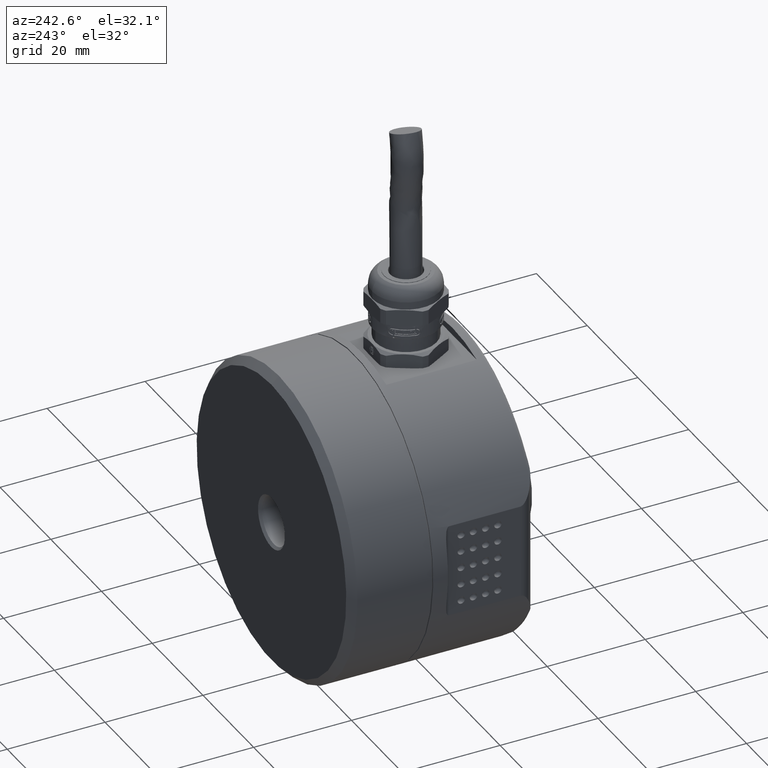
[diagram: clean part render]
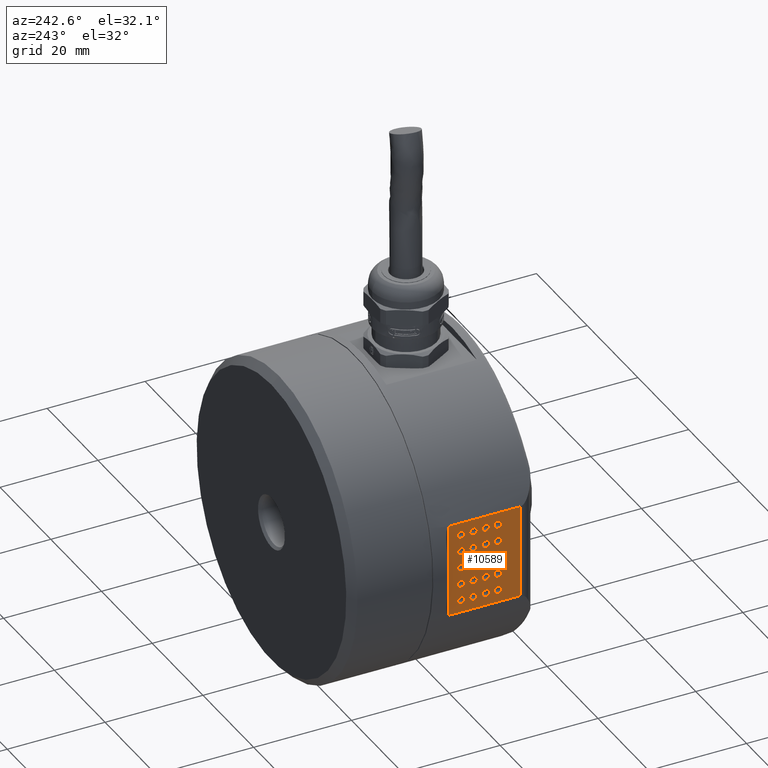
[diagram: same view with one face highlighted and labeled with its STEP entity id]
A machine part, auxiliary view. The second image highlights one B-rep face of the part: STEP entity #10589.
In plain terms, the highlighted planar face has unit normal (1, 0, 0).
Its self-contained STEP definition (entity closure, byte-faithful):
#1 = DIRECTION ( 'NONE',  ( -1.000000000000000000, 0.000000000000000000, 1.224646799147353207E-16 ) ) ;
#23 = CARTESIAN_POINT ( 'NONE',  ( -29.50000000000000355, 23.25000000000000000, -3.499999895691868979 ) ) ;
#29 = EDGE_CURVE ( 'NONE', #3752, #8748, #9742, .T. ) ;
#67 = CIRCLE ( 'NONE', #12413, 0.7500000000000006661 ) ;
#71 = EDGE_CURVE ( 'NONE', #3728, #7566, #6668, .T. ) ;
#180 = AXIS2_PLACEMENT_3D ( 'NONE', #4511, #16508, #13855 ) ;
#232 = DIRECTION ( 'NONE',  ( 0.000000000000000000, -1.000000000000000000, 0.000000000000000000 ) ) ;
#344 = CIRCLE ( 'NONE', #10169, 0.7500000000000006661 ) ;
#350 = DIRECTION ( 'NONE',  ( -0.000000000000000000, 0.000000000000000000, -1.000000000000000000 ) ) ;
#415 = CIRCLE ( 'NONE', #5239, 0.7500000000000006661 ) ;
#472 = FACE_OUTER_BOUND ( 'NONE', #15123, .T. ) ;
#515 = VECTOR ( 'NONE', #17164, 1000.000000000000000 ) ;
#544 = CARTESIAN_POINT ( 'NONE',  ( -29.50000000000000355, 19.25000000000000000, -6.999999895691870755 ) ) ;
#617 = AXIS2_PLACEMENT_3D ( 'NONE', #2905, #14808, #8269 ) ;
#650 = DIRECTION ( 'NONE',  ( 0.000000000000000000, -1.000000000000000000, -8.881784274204767616E-16 ) ) ;
#677 = CIRCLE ( 'NONE', #14459, 0.7500000000000006661 ) ;
#703 = EDGE_CURVE ( 'NONE', #9369, #14325, #344, .T. ) ;
#790 = DIRECTION ( 'NONE',  ( 0.000000000000000000, -1.000000000000000000, 0.000000000000000000 ) ) ;
#821 = CARTESIAN_POINT ( 'NONE',  ( -29.50000000000000355, 19.25000000000000000, 7.000000104308131021 ) ) ;
#823 = CIRCLE ( 'NONE', #1666, 0.7500000000000006661 ) ;
#835 = DIRECTION ( 'NONE',  ( -1.000000000000000000, -0.000000000000000000, -0.000000000000000000 ) ) ;
#872 = CARTESIAN_POINT ( 'NONE',  ( -29.50000000000000355, 22.50000000000000000, 3.500000104308130133 ) ) ;
#922 = CARTESIAN_POINT ( 'NONE',  ( -29.50000000000000355, 23.25000000000000000, -6.999999895691870755 ) ) ;
#979 = DIRECTION ( 'NONE',  ( -1.000000000000000000, 0.000000000000000000, 1.224646799147353207E-16 ) ) ;
#1027 = EDGE_CURVE ( 'NONE', #14086, #14027, #13568, .T. ) ;
#1029 = VERTEX_POINT ( 'NONE', #5064 ) ;
#1116 = CIRCLE ( 'NONE', #1951, 0.7500000000000006661 ) ;
#1160 = CARTESIAN_POINT ( 'NONE',  ( -29.49999999999999645, -8.235433105048279856, -9.526279441628842548 ) ) ;
#1217 = FACE_BOUND ( 'NONE', #1915, .T. ) ;
#1240 = DIRECTION ( 'NONE',  ( 0.000000000000000000, -1.000000000000000000, 0.000000000000000000 ) ) ;
#1250 = CARTESIAN_POINT ( 'NONE',  ( -29.50000000000000000, 25.00000000000000000, 9.526279441628851430 ) ) ;
#1336 = CARTESIAN_POINT ( 'NONE',  ( -29.50000000000000355, 22.50000000000000000, -6.999999895691869867 ) ) ;
#1371 = VERTEX_POINT ( 'NONE', #9058 ) ;
#1400 = EDGE_CURVE ( 'NONE', #8001, #4062, #13277, .T. ) ;
#1509 = LINE ( 'NONE', #1160, #6720 ) ;
#1547 = CARTESIAN_POINT ( 'NONE',  ( -29.50000000000000355, 22.50000000000000000, -3.499999895691869867 ) ) ;
#1614 = EDGE_CURVE ( 'NONE', #7566, #3728, #12316, .T. ) ;
#1625 = CARTESIAN_POINT ( 'NONE',  ( -29.50000000000000355, 14.24999999999999822, -6.999999895691870755 ) ) ;
#1633 = CARTESIAN_POINT ( 'NONE',  ( -29.50000000000000355, 20.00000000000000000, 3.500000104308130133 ) ) ;
#1666 = AXIS2_PLACEMENT_3D ( 'NONE', #5521, #6725, #14669 ) ;
#1722 = AXIS2_PLACEMENT_3D ( 'NONE', #1633, #9455, #13528 ) ;
#1745 = CIRCLE ( 'NONE', #13571, 0.7500000000000006661 ) ;
#1791 = AXIS2_PLACEMENT_3D ( 'NONE', #5233, #15989, #3912 ) ;
#1812 = EDGE_CURVE ( 'NONE', #6926, #4158, #3461, .T. ) ;
#1839 = EDGE_LOOP ( 'NONE', ( #2301, #15767 ) ) ;
#1846 = DIRECTION ( 'NONE',  ( -1.000000000000000000, 0.000000000000000000, 1.224646799147353207E-16 ) ) ;
#1876 = DIRECTION ( 'NONE',  ( 0.000000000000000000, -1.000000000000000000, 0.000000000000000000 ) ) ;
#1915 = EDGE_LOOP ( 'NONE', ( #14796, #3653 ) ) ;
#1925 = AXIS2_PLACEMENT_3D ( 'NONE', #2179, #7529, #12911 ) ;
#1951 = AXIS2_PLACEMENT_3D ( 'NONE', #2544, #1, #2365 ) ;
#2054 = CARTESIAN_POINT ( 'NONE',  ( -29.50000000000000355, 15.00000000000000000, -3.499999895691869867 ) ) ;
#2066 = AXIS2_PLACEMENT_3D ( 'NONE', #2631, #2713, #9040 ) ;
#2075 = EDGE_CURVE ( 'NONE', #10793, #11340, #3373, .T. ) ;
#2105 = DIRECTION ( 'NONE',  ( -1.000000000000000000, 0.000000000000000000, 1.224646799147353207E-16 ) ) ;
#2179 = CARTESIAN_POINT ( 'NONE',  ( -29.50000000000000355, 17.50000000000000000, 3.500000104308130133 ) ) ;
#2272 = AXIS2_PLACEMENT_3D ( 'NONE', #5067, #15823, #3734 ) ;
#2278 = CIRCLE ( 'NONE', #16618, 0.7500000000000006661 ) ;
#2301 = ORIENTED_EDGE ( 'NONE', *, *, #13540, .F. ) ;
#2365 = DIRECTION ( 'NONE',  ( 0.000000000000000000, -1.000000000000000000, 0.000000000000000000 ) ) ;
#2397 = VERTEX_POINT ( 'NONE', #16515 ) ;
#2510 = FACE_BOUND ( 'NONE', #14647, .T. ) ;
#2544 = CARTESIAN_POINT ( 'NONE',  ( -29.50000000000000355, 17.50000000000000000, -6.999999895691869867 ) ) ;
#2565 = DIRECTION ( 'NONE',  ( -1.000000000000000000, -0.000000000000000000, -0.000000000000000000 ) ) ;
#2604 = DIRECTION ( 'NONE',  ( -1.000000000000000000, 0.000000000000000000, 1.224646799147353207E-16 ) ) ;
#2631 = CARTESIAN_POINT ( 'NONE',  ( -29.50000000000000355, 20.00000000000000000, -3.499999895691869867 ) ) ;
#2713 = DIRECTION ( 'NONE',  ( -1.000000000000000000, 0.000000000000000000, 1.224646799147353207E-16 ) ) ;
#2837 = DIRECTION ( 'NONE',  ( 0.000000000000000000, -1.000000000000000000, 0.000000000000000000 ) ) ;
#2863 = EDGE_CURVE ( 'NONE', #7557, #8261, #1116, .T. ) ;
#2900 = CARTESIAN_POINT ( 'NONE',  ( -29.50000000000000355, 17.50000000000000000, 1.043081276908000172E-07 ) ) ;
#2905 = CARTESIAN_POINT ( 'NONE',  ( -29.50000000000000355, 17.50000000000000000, 3.500000104308130133 ) ) ;
#2913 = ORIENTED_EDGE ( 'NONE', *, *, #14921, .F. ) ;
#2996 = EDGE_CURVE ( 'NONE', #14027, #14086, #823, .T. ) ;
#3146 = CARTESIAN_POINT ( 'NONE',  ( -29.50000000000000355, 16.75000000000000000, -3.499999895691870755 ) ) ;
#3158 = DIRECTION ( 'NONE',  ( 0.000000000000000000, -1.000000000000000000, 0.000000000000000000 ) ) ;
#3222 = CARTESIAN_POINT ( 'NONE',  ( -29.50000000000000355, 15.75000000000000000, 1.043081279683556145E-07 ) ) ;
#3373 = CIRCLE ( 'NONE', #2272, 0.7500000000000006661 ) ;
#3374 = ORIENTED_EDGE ( 'NONE', *, *, #1027, .F. ) ;
#3395 = ORIENTED_EDGE ( 'NONE', *, *, #4911, .F. ) ;
#3406 = CARTESIAN_POINT ( 'NONE',  ( -29.50000000000000355, 18.25000000000000355, 1.043081279683556145E-07 ) ) ;
#3461 = CIRCLE ( 'NONE', #2066, 0.7500000000000006661 ) ;
#3499 = ORIENTED_EDGE ( 'NONE', *, *, #17421, .F. ) ;
#3545 = AXIS2_PLACEMENT_3D ( 'NONE', #8215, #9686, #8296 ) ;
#3558 = FACE_BOUND ( 'NONE', #16391, .T. ) ;
#3653 = ORIENTED_EDGE ( 'NONE', *, *, #14865, .F. ) ;
#3728 = VERTEX_POINT ( 'NONE', #11443 ) ;
#3734 = DIRECTION ( 'NONE',  ( 0.000000000000000000, -1.000000000000000000, 0.000000000000000000 ) ) ;
#3751 = ORIENTED_EDGE ( 'NONE', *, *, #1400, .F. ) ;
#3752 = VERTEX_POINT ( 'NONE', #14452 ) ;
#3776 = DIRECTION ( 'NONE',  ( 0.000000000000000000, -1.000000000000000000, 0.000000000000000000 ) ) ;
#3813 = DIRECTION ( 'NONE',  ( 0.000000000000000000, -1.000000000000000000, -8.881784274204767616E-16 ) ) ;
#3818 = AXIS2_PLACEMENT_3D ( 'NONE', #1547, #6902, #232 ) ;
#3820 = CIRCLE ( 'NONE', #4381, 0.7500000000000006661 ) ;
#3823 = DIRECTION ( 'NONE',  ( 0.000000000000000000, -1.000000000000000000, 0.000000000000000000 ) ) ;
#3835 = CARTESIAN_POINT ( 'NONE',  ( -29.50000000000000355, 23.25000000000000000, 3.500000104308128801 ) ) ;
#3843 = CIRCLE ( 'NONE', #12013, 0.7500000000000006661 ) ;
#3912 = DIRECTION ( 'NONE',  ( 0.000000000000000000, -1.000000000000000000, -8.881784274204767616E-16 ) ) ;
#3952 = EDGE_LOOP ( 'NONE', ( #12098, #3374 ) ) ;
#4021 = PLANE ( 'NONE',  #180 ) ;
#4043 = DIRECTION ( 'NONE',  ( 0.000000000000000000, -1.000000000000000000, 0.000000000000000000 ) ) ;
#4062 = VERTEX_POINT ( 'NONE', #3835 ) ;
#4109 = FACE_BOUND ( 'NONE', #13244, .T. ) ;
#4158 = VERTEX_POINT ( 'NONE', #15652 ) ;
#4187 = EDGE_CURVE ( 'NONE', #1371, #15967, #8384, .T. ) ;
#4205 = EDGE_CURVE ( 'NONE', #14325, #9369, #17125, .T. ) ;
#4209 = EDGE_LOOP ( 'NONE', ( #15355, #10133 ) ) ;
#4229 = ORIENTED_EDGE ( 'NONE', *, *, #16368, .F. ) ;
#4265 = CARTESIAN_POINT ( 'NONE',  ( -29.50000000000000355, 20.00000000000000000, 3.500000104308130133 ) ) ;
#4292 = DIRECTION ( 'NONE',  ( -1.000000000000000000, 0.000000000000000000, 1.224646799147353207E-16 ) ) ;
#4305 = LINE ( 'NONE', #8358, #7541 ) ;
#4341 = CARTESIAN_POINT ( 'NONE',  ( -29.50000000000000355, 20.75000000000000000, -3.499999895691868979 ) ) ;
#4342 = DIRECTION ( 'NONE',  ( -1.000000000000000000, -0.000000000000000000, -0.000000000000000000 ) ) ;
#4381 = AXIS2_PLACEMENT_3D ( 'NONE', #13163, #835, #3813 ) ;
#4425 = DIRECTION ( 'NONE',  ( -1.000000000000000000, -0.000000000000000000, -0.000000000000000000 ) ) ;
#4435 = AXIS2_PLACEMENT_3D ( 'NONE', #4732, #7631, #16632 ) ;
#4484 = CARTESIAN_POINT ( 'NONE',  ( -29.50000000000000355, 25.00000000000000000, -9.526279441628833666 ) ) ;
#4511 = CARTESIAN_POINT ( 'NONE',  ( -29.50000000000000355, 25.00000000000000000, -31.00000000000000000 ) ) ;
#4592 = ORIENTED_EDGE ( 'NONE', *, *, #16866, .F. ) ;
#4600 = AXIS2_PLACEMENT_3D ( 'NONE', #9272, #2604, #12015 ) ;
#4732 = CARTESIAN_POINT ( 'NONE',  ( -29.50000000000000355, 15.00000000000000000, 1.043081276908000172E-07 ) ) ;
#4786 = FACE_BOUND ( 'NONE', #7060, .T. ) ;
#4811 = CARTESIAN_POINT ( 'NONE',  ( -29.50000000000000355, 15.00000000000000000, 3.500000104308130133 ) ) ;
#4877 = FACE_BOUND ( 'NONE', #5529, .T. ) ;
#4911 = EDGE_CURVE ( 'NONE', #11306, #8795, #1509, .T. ) ;
#4939 = CARTESIAN_POINT ( 'NONE',  ( -29.50000000000000355, 22.50000000000000000, 7.000000104308130133 ) ) ;
#5052 = CARTESIAN_POINT ( 'NONE',  ( -29.50000000000000355, 15.75000000000000000, -6.999999895691870755 ) ) ;
#5064 = CARTESIAN_POINT ( 'NONE',  ( -29.50000000000000355, 19.25000000000000000, 3.500000104308129245 ) ) ;
#5067 = CARTESIAN_POINT ( 'NONE',  ( -29.50000000000000355, 20.00000000000000000, 7.000000104308130133 ) ) ;
#5102 = ORIENTED_EDGE ( 'NONE', *, *, #71, .F. ) ;
#5141 = CIRCLE ( 'NONE', #16941, 0.7500000000000006661 ) ;
#5144 = EDGE_CURVE ( 'NONE', #6551, #11306, #4305, .T. ) ;
#5183 = CARTESIAN_POINT ( 'NONE',  ( -29.49999999999999289, -8.235433105048279856, 9.526279441628853206 ) ) ;
#5209 = EDGE_LOOP ( 'NONE', ( #11699, #11959 ) ) ;
#5233 = CARTESIAN_POINT ( 'NONE',  ( -29.50000000000000355, 17.50000000000000000, 1.043081276908000040E-07 ) ) ;
#5239 = AXIS2_PLACEMENT_3D ( 'NONE', #5318, #16073, #14841 ) ;
#5255 = DIRECTION ( 'NONE',  ( -1.000000000000000000, 0.000000000000000000, 1.224646799147353207E-16 ) ) ;
#5270 = CARTESIAN_POINT ( 'NONE',  ( -29.50000000000000355, 20.75000000000000000, 7.000000104308132798 ) ) ;
#5318 = CARTESIAN_POINT ( 'NONE',  ( -29.50000000000000355, 15.00000000000000000, -6.999999895691869867 ) ) ;
#5334 = DIRECTION ( 'NONE',  ( 0.000000000000000000, -1.000000000000000000, 0.000000000000000000 ) ) ;
#5347 = EDGE_CURVE ( 'NONE', #16486, #6551, #17352, .T. ) ;
#5363 = ORIENTED_EDGE ( 'NONE', *, *, #14962, .F. ) ;
#5396 = EDGE_LOOP ( 'NONE', ( #7507, #5102 ) ) ;
#5465 = DIRECTION ( 'NONE',  ( -0.000000000000000000, 1.000000000000000000, -0.000000000000000000 ) ) ;
#5472 = CARTESIAN_POINT ( 'NONE',  ( -29.50000000000000355, 21.75000000000000000, -6.999999895691870755 ) ) ;
#5521 = CARTESIAN_POINT ( 'NONE',  ( -29.50000000000000355, 20.00000000000000000, -6.999999895691869867 ) ) ;
#5529 = EDGE_LOOP ( 'NONE', ( #4592, #3751 ) ) ;
#5584 = DIRECTION ( 'NONE',  ( -1.000000000000000000, 0.000000000000000000, 1.224646799147353207E-16 ) ) ;
#5730 = FACE_BOUND ( 'NONE', #10813, .T. ) ;
#5747 = VERTEX_POINT ( 'NONE', #1625 ) ;
#5952 = CIRCLE ( 'NONE', #9887, 0.7500000000000006661 ) ;
#6069 = DIRECTION ( 'NONE',  ( -1.000000000000000000, 0.000000000000000000, 1.224646799147353207E-16 ) ) ;
#6094 = FACE_BOUND ( 'NONE', #11908, .T. ) ;
#6116 = CARTESIAN_POINT ( 'NONE',  ( -29.50000000000000355, 18.25000000000000355, -6.999999895691870755 ) ) ;
#6183 = AXIS2_PLACEMENT_3D ( 'NONE', #9993, #7447, #15225 ) ;
#6204 = ORIENTED_EDGE ( 'NONE', *, *, #16279, .F. ) ;
#6249 = EDGE_CURVE ( 'NONE', #17168, #9362, #14638, .T. ) ;
#6278 = ORIENTED_EDGE ( 'NONE', *, *, #5347, .F. ) ;
#6450 = AXIS2_PLACEMENT_3D ( 'NONE', #11251, #8363, #3158 ) ;
#6498 = VERTEX_POINT ( 'NONE', #12055 ) ;
#6533 = DIRECTION ( 'NONE',  ( -1.000000000000000000, 0.000000000000000000, 1.224646799147353207E-16 ) ) ;
#6551 = VERTEX_POINT ( 'NONE', #10456 ) ;
#6567 = FACE_BOUND ( 'NONE', #4209, .T. ) ;
#6580 = EDGE_LOOP ( 'NONE', ( #10368, #6674 ) ) ;
#6609 = CARTESIAN_POINT ( 'NONE',  ( -29.50000000000000355, 23.25000000000000000, 1.043081279683556145E-07 ) ) ;
#6648 = DIRECTION ( 'NONE',  ( 0.000000000000000000, -1.000000000000000000, 0.000000000000000000 ) ) ;
#6662 = FACE_BOUND ( 'NONE', #13746, .T. ) ;
#6668 = CIRCLE ( 'NONE', #8085, 0.7500000000000006661 ) ;
#6674 = ORIENTED_EDGE ( 'NONE', *, *, #9217, .F. ) ;
#6688 = DIRECTION ( 'NONE',  ( -1.000000000000000000, 0.000000000000000000, 1.224646799147353207E-16 ) ) ;
#6720 = VECTOR ( 'NONE', #5465, 1000.000000000000000 ) ;
#6725 = DIRECTION ( 'NONE',  ( -1.000000000000000000, 0.000000000000000000, 1.224646799147353207E-16 ) ) ;
#6826 = EDGE_CURVE ( 'NONE', #6498, #13647, #16424, .T. ) ;
#6902 = DIRECTION ( 'NONE',  ( -1.000000000000000000, 0.000000000000000000, 1.224646799147353207E-16 ) ) ;
#6926 = VERTEX_POINT ( 'NONE', #4341 ) ;
#6930 = CARTESIAN_POINT ( 'NONE',  ( -29.50000000000000355, 15.00000000000000000, -3.499999895691869867 ) ) ;
#6939 = DIRECTION ( 'NONE',  ( -1.000000000000000000, 0.000000000000000000, 1.224646799147353207E-16 ) ) ;
#6965 = EDGE_CURVE ( 'NONE', #10310, #15684, #677, .T. ) ;
#7044 = CIRCLE ( 'NONE', #1722, 0.7500000000000006661 ) ;
#7060 = EDGE_LOOP ( 'NONE', ( #12772, #5363 ) ) ;
#7115 = EDGE_LOOP ( 'NONE', ( #11906, #13434 ) ) ;
#7144 = EDGE_CURVE ( 'NONE', #11250, #9713, #13048, .T. ) ;
#7151 = EDGE_CURVE ( 'NONE', #11340, #10793, #11628, .T. ) ;
#7200 = AXIS2_PLACEMENT_3D ( 'NONE', #872, #2105, #790 ) ;
#7337 = CARTESIAN_POINT ( 'NONE',  ( -29.50000000000000355, 19.25000000000000000, 1.043081278989667152E-07 ) ) ;
#7447 = DIRECTION ( 'NONE',  ( -1.000000000000000000, 0.000000000000000000, 1.224646799147353207E-16 ) ) ;
#7468 = CIRCLE ( 'NONE', #11991, 0.7500000000000006661 ) ;
#7492 = CIRCLE ( 'NONE', #8338, 0.7500000000000006661 ) ;
#7499 = EDGE_CURVE ( 'NONE', #15833, #8123, #3843, .T. ) ;
#7507 = ORIENTED_EDGE ( 'NONE', *, *, #1614, .F. ) ;
#7529 = DIRECTION ( 'NONE',  ( -1.000000000000000000, 0.000000000000000000, 1.224646799147353207E-16 ) ) ;
#7541 = VECTOR ( 'NONE', #350, 1000.000000000000000 ) ;
#7557 = VERTEX_POINT ( 'NONE', #6116 ) ;
#7559 = ORIENTED_EDGE ( 'NONE', *, *, #12137, .F. ) ;
#7566 = VERTEX_POINT ( 'NONE', #3222 ) ;
#7631 = DIRECTION ( 'NONE',  ( -1.000000000000000000, 0.000000000000000000, 1.224646799147353207E-16 ) ) ;
#7760 = VECTOR ( 'NONE', #16432, 1000.000000000000000 ) ;
#8001 = VERTEX_POINT ( 'NONE', #12634 ) ;
#8023 = VERTEX_POINT ( 'NONE', #7337 ) ;
#8038 = CARTESIAN_POINT ( 'NONE',  ( -29.50000000000000355, 20.00000000000000000, 1.043081276908000172E-07 ) ) ;
#8085 = AXIS2_PLACEMENT_3D ( 'NONE', #12421, #14914, #2837 ) ;
#8092 = VERTEX_POINT ( 'NONE', #922 ) ;
#8123 = VERTEX_POINT ( 'NONE', #10603 ) ;
#8148 = CARTESIAN_POINT ( 'NONE',  ( -29.50000000000000355, 22.50000000000000000, -3.499999895691869867 ) ) ;
#8158 = FACE_BOUND ( 'NONE', #6580, .T. ) ;
#8215 = CARTESIAN_POINT ( 'NONE',  ( -29.50000000000000355, 15.00000000000000000, -6.999999895691869867 ) ) ;
#8261 = VERTEX_POINT ( 'NONE', #12193 ) ;
#8263 = DIRECTION ( 'NONE',  ( -1.000000000000000000, 0.000000000000000000, 1.224646799147353207E-16 ) ) ;
#8269 = DIRECTION ( 'NONE',  ( 0.000000000000000000, -1.000000000000000000, 0.000000000000000000 ) ) ;
#8295 = ORIENTED_EDGE ( 'NONE', *, *, #6249, .F. ) ;
#8296 = DIRECTION ( 'NONE',  ( 0.000000000000000000, -1.000000000000000000, 0.000000000000000000 ) ) ;
#8321 = CARTESIAN_POINT ( 'NONE',  ( -29.50000000000000355, 25.00000000000000000, -31.00000000000000000 ) ) ;
#8322 = CIRCLE ( 'NONE', #3545, 0.7500000000000006661 ) ;
#8338 = AXIS2_PLACEMENT_3D ( 'NONE', #10782, #4425, #650 ) ;
#8358 = CARTESIAN_POINT ( 'NONE',  ( -29.50000000000000000, 10.50000000000000000, -31.00000000000000000 ) ) ;
#8363 = DIRECTION ( 'NONE',  ( -1.000000000000000000, 0.000000000000000000, 1.224646799147353207E-16 ) ) ;
#8384 = CIRCLE ( 'NONE', #1925, 0.7500000000000006661 ) ;
#8471 = FACE_BOUND ( 'NONE', #9695, .T. ) ;
#8549 = ORIENTED_EDGE ( 'NONE', *, *, #10534, .F. ) ;
#8570 = DIRECTION ( 'NONE',  ( 0.000000000000000000, -1.000000000000000000, 0.000000000000000000 ) ) ;
#8586 = CARTESIAN_POINT ( 'NONE',  ( -29.50000000000000355, 23.25000000000000000, 7.000000104308132798 ) ) ;
#8587 = CIRCLE ( 'NONE', #9986, 0.7500000000000006661 ) ;
#8653 = AXIS2_PLACEMENT_3D ( 'NONE', #11939, #5255, #14862 ) ;
#8748 = VERTEX_POINT ( 'NONE', #6609 ) ;
#8760 = VERTEX_POINT ( 'NONE', #5472 ) ;
#8795 = VERTEX_POINT ( 'NONE', #4484 ) ;
#8909 = AXIS2_PLACEMENT_3D ( 'NONE', #13911, #1846, #12591 ) ;
#8916 = DIRECTION ( 'NONE',  ( 0.000000000000000000, -1.000000000000000000, 0.000000000000000000 ) ) ;
#8921 = FACE_BOUND ( 'NONE', #12854, .T. ) ;
#9040 = DIRECTION ( 'NONE',  ( 0.000000000000000000, -1.000000000000000000, 0.000000000000000000 ) ) ;
#9049 = CARTESIAN_POINT ( 'NONE',  ( -29.50000000000000355, 20.75000000000000000, 3.500000104308128801 ) ) ;
#9058 = CARTESIAN_POINT ( 'NONE',  ( -29.50000000000000355, 18.25000000000000355, 3.500000104308128801 ) ) ;
#9085 = CARTESIAN_POINT ( 'NONE',  ( -29.50000000000000355, 16.75000000000000000, 3.500000104308129245 ) ) ;
#9093 = CARTESIAN_POINT ( 'NONE',  ( -29.50000000000000355, 20.00000000000000000, -6.999999895691869867 ) ) ;
#9141 = AXIS2_PLACEMENT_3D ( 'NONE', #16124, #6939, #4043 ) ;
#9200 = ORIENTED_EDGE ( 'NONE', *, *, #12893, .F. ) ;
#9217 = EDGE_CURVE ( 'NONE', #9713, #11250, #8587, .T. ) ;
#9240 = ORIENTED_EDGE ( 'NONE', *, *, #14760, .F. ) ;
#9272 = CARTESIAN_POINT ( 'NONE',  ( -29.50000000000000355, 20.00000000000000000, 7.000000104308130133 ) ) ;
#9362 = VERTEX_POINT ( 'NONE', #12196 ) ;
#9369 = VERTEX_POINT ( 'NONE', #15109 ) ;
#9455 = DIRECTION ( 'NONE',  ( -1.000000000000000000, 0.000000000000000000, 1.224646799147353207E-16 ) ) ;
#9499 = CARTESIAN_POINT ( 'NONE',  ( -29.50000000000000355, 15.75000000000000000, 3.500000104308128801 ) ) ;
#9501 = EDGE_CURVE ( 'NONE', #15696, #8023, #7492, .T. ) ;
#9632 = LINE ( 'NONE', #8321, #7760 ) ;
#9669 = ORIENTED_EDGE ( 'NONE', *, *, #2075, .F. ) ;
#9686 = DIRECTION ( 'NONE',  ( -1.000000000000000000, 0.000000000000000000, 1.224646799147353207E-16 ) ) ;
#9695 = EDGE_LOOP ( 'NONE', ( #13312, #12295 ) ) ;
#9699 = AXIS2_PLACEMENT_3D ( 'NONE', #11871, #13109, #13372 ) ;
#9713 = VERTEX_POINT ( 'NONE', #14465 ) ;
#9742 = CIRCLE ( 'NONE', #8909, 0.7500000000000006661 ) ;
#9785 = FACE_BOUND ( 'NONE', #1839, .T. ) ;
#9887 = AXIS2_PLACEMENT_3D ( 'NONE', #8148, #5584, #6648 ) ;
#9986 = AXIS2_PLACEMENT_3D ( 'NONE', #2900, #8263, #8570 ) ;
#9993 = CARTESIAN_POINT ( 'NONE',  ( -29.50000000000000355, 17.50000000000000000, -3.499999895691869867 ) ) ;
#10104 = EDGE_LOOP ( 'NONE', ( #16615, #9200 ) ) ;
#10133 = ORIENTED_EDGE ( 'NONE', *, *, #10732, .F. ) ;
#10151 = EDGE_CURVE ( 'NONE', #8261, #7557, #16242, .T. ) ;
#10168 = ORIENTED_EDGE ( 'NONE', *, *, #4205, .F. ) ;
#10169 = AXIS2_PLACEMENT_3D ( 'NONE', #13191, #11864, #10527 ) ;
#10195 = VERTEX_POINT ( 'NONE', #3146 ) ;
#10229 = CARTESIAN_POINT ( 'NONE',  ( -29.50000000000000355, 17.50000000000000000, 7.000000104308130133 ) ) ;
#10234 = FACE_BOUND ( 'NONE', #10104, .T. ) ;
#10261 = CARTESIAN_POINT ( 'NONE',  ( -29.50000000000000000, 10.49999999999999822, -9.526279441628846101 ) ) ;
#10268 = AXIS2_PLACEMENT_3D ( 'NONE', #2054, #16931, #1876 ) ;
#10297 = DIRECTION ( 'NONE',  ( 0.000000000000000000, -1.000000000000000000, 0.000000000000000000 ) ) ;
#10310 = VERTEX_POINT ( 'NONE', #11676 ) ;
#10326 = FACE_BOUND ( 'NONE', #3952, .T. ) ;
#10368 = ORIENTED_EDGE ( 'NONE', *, *, #7144, .F. ) ;
#10456 = CARTESIAN_POINT ( 'NONE',  ( -29.50000000000000000, 10.49999999999999822, 9.526279441628833666 ) ) ;
#10513 = DIRECTION ( 'NONE',  ( -1.000000000000000000, 0.000000000000000000, 1.224646799147353207E-16 ) ) ;
#10527 = DIRECTION ( 'NONE',  ( 0.000000000000000000, -1.000000000000000000, 0.000000000000000000 ) ) ;
#10534 = EDGE_CURVE ( 'NONE', #8748, #3752, #3820, .T. ) ;
#10551 = CARTESIAN_POINT ( 'NONE',  ( -29.50000000000000355, 22.50000000000000000, -6.999999895691869867 ) ) ;
#10562 = ORIENTED_EDGE ( 'NONE', *, *, #10993, .F. ) ;
#10571 = CIRCLE ( 'NONE', #17344, 0.7500000000000006661 ) ;
#10573 = CIRCLE ( 'NONE', #3818, 0.7500000000000006661 ) ;
#10589 = ADVANCED_FACE ( 'NONE', ( #6094, #8921, #2510, #4877, #3558, #10326, #11475, #4786, #10234, #13541, #6662, #9785, #8158, #8471, #1217, #5730, #6567, #13365, #16016, #4109, #472 ), #4021, .F. ) ;
#10603 = CARTESIAN_POINT ( 'NONE',  ( -29.50000000000000355, 14.24999999999999822, -3.499999895691870755 ) ) ;
#10616 = DIRECTION ( 'NONE',  ( 0.000000000000000000, -1.000000000000000000, 0.000000000000000000 ) ) ;
#10732 = EDGE_CURVE ( 'NONE', #8123, #15833, #13389, .T. ) ;
#10782 = CARTESIAN_POINT ( 'NONE',  ( -29.50000000000000355, 20.00000000000000000, 1.043081276908000040E-07 ) ) ;
#10793 = VERTEX_POINT ( 'NONE', #821 ) ;
#10813 = EDGE_LOOP ( 'NONE', ( #2913, #6204 ) ) ;
#10993 = EDGE_CURVE ( 'NONE', #8760, #8092, #2278, .T. ) ;
#11163 = EDGE_CURVE ( 'NONE', #10195, #2397, #13802, .T. ) ;
#11250 = VERTEX_POINT ( 'NONE', #3406 ) ;
#11251 = CARTESIAN_POINT ( 'NONE',  ( -29.50000000000000355, 22.50000000000000000, 7.000000104308130133 ) ) ;
#11306 = VERTEX_POINT ( 'NONE', #10261 ) ;
#11340 = VERTEX_POINT ( 'NONE', #5270 ) ;
#11443 = CARTESIAN_POINT ( 'NONE',  ( -29.50000000000000355, 14.24999999999999822, 1.043081278989667152E-07 ) ) ;
#11475 = FACE_BOUND ( 'NONE', #5209, .T. ) ;
#11500 = ORIENTED_EDGE ( 'NONE', *, *, #703, .F. ) ;
#11567 = DIRECTION ( 'NONE',  ( -1.000000000000000000, 0.000000000000000000, 1.224646799147353207E-16 ) ) ;
#11628 = CIRCLE ( 'NONE', #4600, 0.7500000000000006661 ) ;
#11676 = CARTESIAN_POINT ( 'NONE',  ( -29.50000000000000355, 18.25000000000000355, 7.000000104308132798 ) ) ;
#11699 = ORIENTED_EDGE ( 'NONE', *, *, #1812, .F. ) ;
#11821 = EDGE_CURVE ( 'NONE', #16955, #1029, #7044, .T. ) ;
#11864 = DIRECTION ( 'NONE',  ( -1.000000000000000000, 0.000000000000000000, 1.224646799147353207E-16 ) ) ;
#11871 = CARTESIAN_POINT ( 'NONE',  ( -29.50000000000000355, 15.00000000000000000, 3.500000104308130133 ) ) ;
#11906 = ORIENTED_EDGE ( 'NONE', *, *, #15713, .F. ) ;
#11908 = EDGE_LOOP ( 'NONE', ( #7559, #10562 ) ) ;
#11939 = CARTESIAN_POINT ( 'NONE',  ( -29.50000000000000355, 15.00000000000000000, 7.000000104308130133 ) ) ;
#11959 = ORIENTED_EDGE ( 'NONE', *, *, #12774, .F. ) ;
#11991 = AXIS2_PLACEMENT_3D ( 'NONE', #8038, #6533, #17211 ) ;
#12013 = AXIS2_PLACEMENT_3D ( 'NONE', #6930, #4292, #14798 ) ;
#12015 = DIRECTION ( 'NONE',  ( 0.000000000000000000, -1.000000000000000000, 0.000000000000000000 ) ) ;
#12055 = CARTESIAN_POINT ( 'NONE',  ( -29.50000000000000355, 14.24999999999999822, 3.500000104308129245 ) ) ;
#12068 = DIRECTION ( 'NONE',  ( 0.000000000000000000, -1.000000000000000000, 0.000000000000000000 ) ) ;
#12098 = ORIENTED_EDGE ( 'NONE', *, *, #2996, .F. ) ;
#12137 = EDGE_CURVE ( 'NONE', #8092, #8760, #67, .T. ) ;
#12182 = EDGE_CURVE ( 'NONE', #15967, #1371, #14973, .T. ) ;
#12193 = CARTESIAN_POINT ( 'NONE',  ( -29.50000000000000355, 16.75000000000000000, -6.999999895691870755 ) ) ;
#12196 = CARTESIAN_POINT ( 'NONE',  ( -29.50000000000000355, 21.75000000000000000, 7.000000104308131021 ) ) ;
#12295 = ORIENTED_EDGE ( 'NONE', *, *, #12182, .F. ) ;
#12316 = CIRCLE ( 'NONE', #4435, 0.7500000000000006661 ) ;
#12413 = AXIS2_PLACEMENT_3D ( 'NONE', #1336, #6688, #12068 ) ;
#12420 = AXIS2_PLACEMENT_3D ( 'NONE', #9093, #11567, #3823 ) ;
#12421 = CARTESIAN_POINT ( 'NONE',  ( -29.50000000000000355, 15.00000000000000000, 1.043081276908000040E-07 ) ) ;
#12469 = CARTESIAN_POINT ( 'NONE',  ( -29.50000000000000355, 15.75000000000000000, 7.000000104308132798 ) ) ;
#12553 = ORIENTED_EDGE ( 'NONE', *, *, #12947, .F. ) ;
#12579 = CARTESIAN_POINT ( 'NONE',  ( -29.50000000000000355, 20.75000000000000000, 1.043081279683556145E-07 ) ) ;
#12591 = DIRECTION ( 'NONE',  ( 0.000000000000000000, -1.000000000000000000, 0.000000000000000000 ) ) ;
#12634 = CARTESIAN_POINT ( 'NONE',  ( -29.50000000000000355, 21.75000000000000000, 3.500000104308129245 ) ) ;
#12701 = DIRECTION ( 'NONE',  ( 0.000000000000000000, -1.000000000000000000, 0.000000000000000000 ) ) ;
#12714 = CARTESIAN_POINT ( 'NONE',  ( -29.50000000000000355, 17.50000000000000000, 7.000000104308130133 ) ) ;
#12772 = ORIENTED_EDGE ( 'NONE', *, *, #9501, .F. ) ;
#12774 = EDGE_CURVE ( 'NONE', #4158, #6926, #1745, .T. ) ;
#12854 = EDGE_LOOP ( 'NONE', ( #12553, #9240 ) ) ;
#12893 = EDGE_CURVE ( 'NONE', #1029, #16955, #5141, .T. ) ;
#12911 = DIRECTION ( 'NONE',  ( 0.000000000000000000, -1.000000000000000000, 0.000000000000000000 ) ) ;
#12940 = AXIS2_PLACEMENT_3D ( 'NONE', #13133, #979, #10297 ) ;
#12947 = EDGE_CURVE ( 'NONE', #13665, #12960, #5952, .T. ) ;
#12960 = VERTEX_POINT ( 'NONE', #14859 ) ;
#13048 = CIRCLE ( 'NONE', #1791, 0.7500000000000006661 ) ;
#13094 = ORIENTED_EDGE ( 'NONE', *, *, #29, .F. ) ;
#13109 = DIRECTION ( 'NONE',  ( -1.000000000000000000, -0.000000000000000000, -0.000000000000000000 ) ) ;
#13122 = VERTEX_POINT ( 'NONE', #5052 ) ;
#13133 = CARTESIAN_POINT ( 'NONE',  ( -29.50000000000000355, 17.50000000000000000, -3.499999895691869867 ) ) ;
#13163 = CARTESIAN_POINT ( 'NONE',  ( -29.50000000000000355, 22.50000000000000000, 1.043081276908000040E-07 ) ) ;
#13191 = CARTESIAN_POINT ( 'NONE',  ( -29.50000000000000355, 15.00000000000000000, 7.000000104308130133 ) ) ;
#13244 = EDGE_LOOP ( 'NONE', ( #10168, #11500 ) ) ;
#13277 = CIRCLE ( 'NONE', #14964, 0.7500000000000006661 ) ;
#13281 = ORIENTED_EDGE ( 'NONE', *, *, #7151, .F. ) ;
#13307 = DIRECTION ( 'NONE',  ( -1.000000000000000000, 0.000000000000000000, 1.224646799147353207E-16 ) ) ;
#13312 = ORIENTED_EDGE ( 'NONE', *, *, #4187, .F. ) ;
#13363 = CIRCLE ( 'NONE', #13958, 0.7500000000000006661 ) ;
#13365 = FACE_BOUND ( 'NONE', #5396, .T. ) ;
#13372 = DIRECTION ( 'NONE',  ( 0.000000000000000000, -1.000000000000000000, 1.734723475976805517E-15 ) ) ;
#13389 = CIRCLE ( 'NONE', #10268, 0.7500000000000006661 ) ;
#13434 = ORIENTED_EDGE ( 'NONE', *, *, #6826, .F. ) ;
#13528 = DIRECTION ( 'NONE',  ( 0.000000000000000000, -1.000000000000000000, 0.000000000000000000 ) ) ;
#13540 = EDGE_CURVE ( 'NONE', #2397, #10195, #15199, .T. ) ;
#13541 = FACE_BOUND ( 'NONE', #16005, .T. ) ;
#13568 = CIRCLE ( 'NONE', #12420, 0.7500000000000006661 ) ;
#13571 = AXIS2_PLACEMENT_3D ( 'NONE', #17235, #10513, #10616 ) ;
#13647 = VERTEX_POINT ( 'NONE', #9499 ) ;
#13665 = VERTEX_POINT ( 'NONE', #23 ) ;
#13746 = EDGE_LOOP ( 'NONE', ( #17240, #16507 ) ) ;
#13802 = CIRCLE ( 'NONE', #6183, 0.7500000000000006661 ) ;
#13855 = DIRECTION ( 'NONE',  ( -1.927470528863120035E-16, 1.000000000000000000, 0.000000000000000000 ) ) ;
#13911 = CARTESIAN_POINT ( 'NONE',  ( -29.50000000000000355, 22.50000000000000000, 1.043081276908000172E-07 ) ) ;
#13958 = AXIS2_PLACEMENT_3D ( 'NONE', #10229, #14306, #8916 ) ;
#14027 = VERTEX_POINT ( 'NONE', #16320 ) ;
#14086 = VERTEX_POINT ( 'NONE', #544 ) ;
#14169 = CARTESIAN_POINT ( 'NONE',  ( -29.50000000000000355, 16.75000000000000000, 7.000000104308131021 ) ) ;
#14252 = CIRCLE ( 'NONE', #7200, 0.7500000000000006661 ) ;
#14306 = DIRECTION ( 'NONE',  ( -1.000000000000000000, 0.000000000000000000, 1.224646799147353207E-16 ) ) ;
#14325 = VERTEX_POINT ( 'NONE', #12469 ) ;
#14336 = DIRECTION ( 'NONE',  ( 0.000000000000000000, -1.000000000000000000, 0.000000000000000000 ) ) ;
#14452 = CARTESIAN_POINT ( 'NONE',  ( -29.50000000000000355, 21.75000000000000000, 1.043081278989667152E-07 ) ) ;
#14459 = AXIS2_PLACEMENT_3D ( 'NONE', #12714, #16345, #15280 ) ;
#14465 = CARTESIAN_POINT ( 'NONE',  ( -29.50000000000000355, 16.75000000000000000, 1.043081278989667152E-07 ) ) ;
#14628 = CARTESIAN_POINT ( 'NONE',  ( -29.50000000000000355, 22.50000000000000000, 3.500000104308130133 ) ) ;
#14638 = CIRCLE ( 'NONE', #6450, 0.7500000000000006661 ) ;
#14647 = EDGE_LOOP ( 'NONE', ( #8549, #13094 ) ) ;
#14669 = DIRECTION ( 'NONE',  ( 0.000000000000000000, -1.000000000000000000, 0.000000000000000000 ) ) ;
#14760 = EDGE_CURVE ( 'NONE', #12960, #13665, #10573, .T. ) ;
#14796 = ORIENTED_EDGE ( 'NONE', *, *, #6965, .F. ) ;
#14798 = DIRECTION ( 'NONE',  ( 0.000000000000000000, -1.000000000000000000, 0.000000000000000000 ) ) ;
#14808 = DIRECTION ( 'NONE',  ( -1.000000000000000000, -0.000000000000000000, -0.000000000000000000 ) ) ;
#14841 = DIRECTION ( 'NONE',  ( 0.000000000000000000, -1.000000000000000000, 0.000000000000000000 ) ) ;
#14859 = CARTESIAN_POINT ( 'NONE',  ( -29.50000000000000355, 21.75000000000000000, -3.499999895691870755 ) ) ;
#14862 = DIRECTION ( 'NONE',  ( 0.000000000000000000, -1.000000000000000000, 0.000000000000000000 ) ) ;
#14865 = EDGE_CURVE ( 'NONE', #15684, #10310, #13363, .T. ) ;
#14914 = DIRECTION ( 'NONE',  ( -1.000000000000000000, -0.000000000000000000, -0.000000000000000000 ) ) ;
#14921 = EDGE_CURVE ( 'NONE', #13122, #5747, #415, .T. ) ;
#14962 = EDGE_CURVE ( 'NONE', #8023, #15696, #7468, .T. ) ;
#14964 = AXIS2_PLACEMENT_3D ( 'NONE', #14628, #2565, #1240 ) ;
#14973 = CIRCLE ( 'NONE', #617, 0.7500000000000006661 ) ;
#15027 = AXIS2_PLACEMENT_3D ( 'NONE', #4811, #16794, #14336 ) ;
#15109 = CARTESIAN_POINT ( 'NONE',  ( -29.50000000000000355, 14.24999999999999822, 7.000000104308131021 ) ) ;
#15123 = EDGE_LOOP ( 'NONE', ( #16512, #6278, #3499, #3395 ) ) ;
#15134 = CARTESIAN_POINT ( 'NONE',  ( -29.50000000000000355, 15.75000000000000000, -3.499999895691868979 ) ) ;
#15199 = CIRCLE ( 'NONE', #12940, 0.7500000000000006661 ) ;
#15225 = DIRECTION ( 'NONE',  ( 0.000000000000000000, -1.000000000000000000, 0.000000000000000000 ) ) ;
#15280 = DIRECTION ( 'NONE',  ( 0.000000000000000000, -1.000000000000000000, 0.000000000000000000 ) ) ;
#15355 = ORIENTED_EDGE ( 'NONE', *, *, #7499, .F. ) ;
#15652 = CARTESIAN_POINT ( 'NONE',  ( -29.50000000000000355, 19.25000000000000000, -3.499999895691870755 ) ) ;
#15684 = VERTEX_POINT ( 'NONE', #14169 ) ;
#15696 = VERTEX_POINT ( 'NONE', #12579 ) ;
#15713 = EDGE_CURVE ( 'NONE', #13647, #6498, #16474, .T. ) ;
#15767 = ORIENTED_EDGE ( 'NONE', *, *, #11163, .F. ) ;
#15823 = DIRECTION ( 'NONE',  ( -1.000000000000000000, 0.000000000000000000, 1.224646799147353207E-16 ) ) ;
#15833 = VERTEX_POINT ( 'NONE', #15134 ) ;
#15967 = VERTEX_POINT ( 'NONE', #9085 ) ;
#15989 = DIRECTION ( 'NONE',  ( -1.000000000000000000, -0.000000000000000000, -0.000000000000000000 ) ) ;
#16005 = EDGE_LOOP ( 'NONE', ( #13281, #9669 ) ) ;
#16016 = FACE_BOUND ( 'NONE', #7115, .T. ) ;
#16073 = DIRECTION ( 'NONE',  ( -1.000000000000000000, 0.000000000000000000, 1.224646799147353207E-16 ) ) ;
#16124 = CARTESIAN_POINT ( 'NONE',  ( -29.50000000000000355, 17.50000000000000000, -6.999999895691869867 ) ) ;
#16242 = CIRCLE ( 'NONE', #9141, 0.7500000000000006661 ) ;
#16279 = EDGE_CURVE ( 'NONE', #5747, #13122, #8322, .T. ) ;
#16320 = CARTESIAN_POINT ( 'NONE',  ( -29.50000000000000355, 20.75000000000000000, -6.999999895691870755 ) ) ;
#16345 = DIRECTION ( 'NONE',  ( -1.000000000000000000, 0.000000000000000000, 1.224646799147353207E-16 ) ) ;
#16368 = EDGE_CURVE ( 'NONE', #9362, #17168, #10571, .T. ) ;
#16391 = EDGE_LOOP ( 'NONE', ( #8295, #4229 ) ) ;
#16424 = CIRCLE ( 'NONE', #15027, 0.7500000000000006661 ) ;
#16432 = DIRECTION ( 'NONE',  ( 0.000000000000000000, -0.000000000000000000, 1.000000000000000000 ) ) ;
#16474 = CIRCLE ( 'NONE', #9699, 0.7500000000000006661 ) ;
#16486 = VERTEX_POINT ( 'NONE', #1250 ) ;
#16507 = ORIENTED_EDGE ( 'NONE', *, *, #10151, .F. ) ;
#16508 = DIRECTION ( 'NONE',  ( 1.000000000000000000, 1.927470528863120035E-16, 0.000000000000000000 ) ) ;
#16512 = ORIENTED_EDGE ( 'NONE', *, *, #5144, .F. ) ;
#16515 = CARTESIAN_POINT ( 'NONE',  ( -29.50000000000000355, 18.25000000000000355, -3.499999895691868979 ) ) ;
#16615 = ORIENTED_EDGE ( 'NONE', *, *, #11821, .F. ) ;
#16618 = AXIS2_PLACEMENT_3D ( 'NONE', #10551, #13307, #3776 ) ;
#16632 = DIRECTION ( 'NONE',  ( 0.000000000000000000, -1.000000000000000000, 0.000000000000000000 ) ) ;
#16794 = DIRECTION ( 'NONE',  ( -1.000000000000000000, 0.000000000000000000, 1.224646799147353207E-16 ) ) ;
#16866 = EDGE_CURVE ( 'NONE', #4062, #8001, #14252, .T. ) ;
#16931 = DIRECTION ( 'NONE',  ( -1.000000000000000000, 0.000000000000000000, 1.224646799147353207E-16 ) ) ;
#16941 = AXIS2_PLACEMENT_3D ( 'NONE', #4265, #4342, #5334 ) ;
#16955 = VERTEX_POINT ( 'NONE', #9049 ) ;
#17125 = CIRCLE ( 'NONE', #8653, 0.7500000000000006661 ) ;
#17164 = DIRECTION ( 'NONE',  ( 0.000000000000000000, -1.000000000000000000, 0.000000000000000000 ) ) ;
#17168 = VERTEX_POINT ( 'NONE', #8586 ) ;
#17211 = DIRECTION ( 'NONE',  ( 0.000000000000000000, -1.000000000000000000, 0.000000000000000000 ) ) ;
#17235 = CARTESIAN_POINT ( 'NONE',  ( -29.50000000000000355, 20.00000000000000000, -3.499999895691869867 ) ) ;
#17240 = ORIENTED_EDGE ( 'NONE', *, *, #2863, .F. ) ;
#17344 = AXIS2_PLACEMENT_3D ( 'NONE', #4939, #6069, #12701 ) ;
#17352 = LINE ( 'NONE', #5183, #515 ) ;
#17421 = EDGE_CURVE ( 'NONE', #8795, #16486, #9632, .T. ) ;